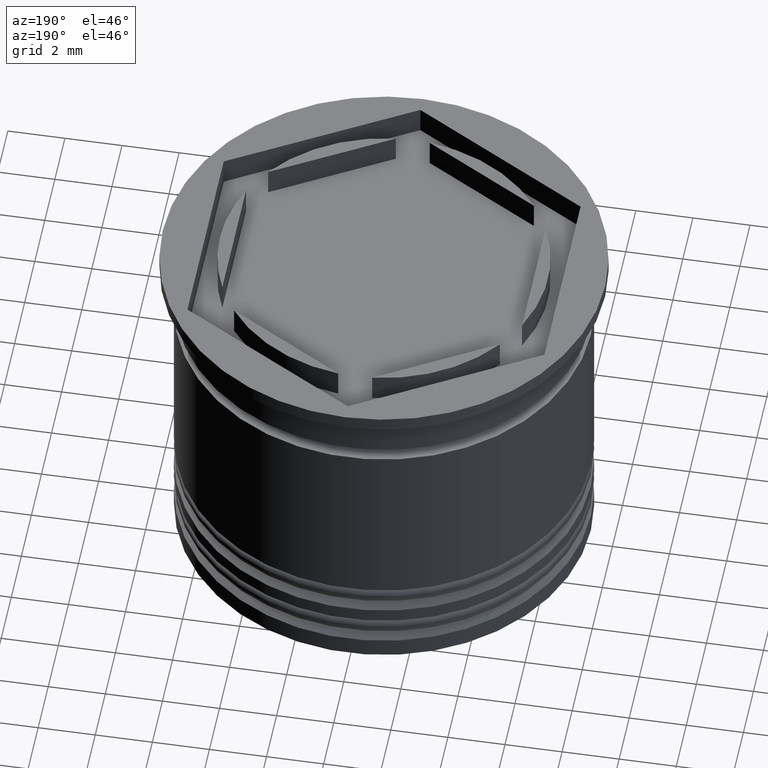
[diagram: clean part render]
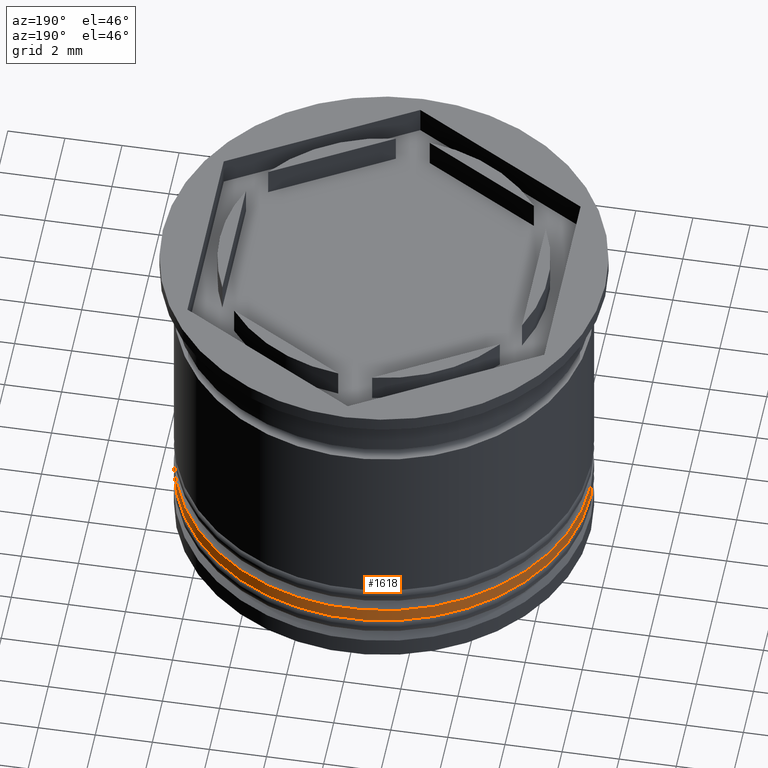
[diagram: same view with one face highlighted and labeled with its STEP entity id]
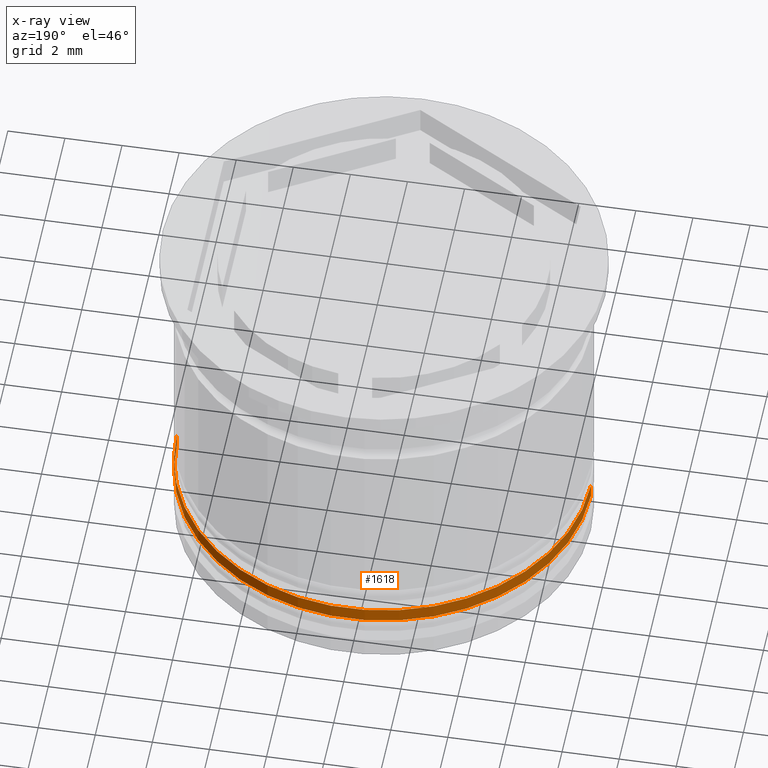
[diagram: x-ray of the same camera — body ghosted, the highlighted face saturated]
A machine part, auxiliary view. The second image highlights one B-rep face of the part: STEP entity #1618.
The next image is the same camera in x-ray: the body ghosted, the highlighted face saturated — about 0% of this face is hidden behind the body in this view.
In plain terms, the highlighted cylindrical surface (partial cylindrical patch) has radius 7.25 mm, axis along (-0, -0, 1).
Its self-contained STEP definition (entity closure, byte-faithful):
#10 = EDGE_CURVE ( 'NONE', #505, #525, #1864, .T. ) ;
#23 = CARTESIAN_POINT ( 'NONE',  ( -7.249999999999999112, 8.878689293818310074E-16, 0.000000000000000000 ) ) ;
#50 = CARTESIAN_POINT ( 'NONE',  ( -7.250000000000000888, 8.878689293818312046E-16, -10.49999999999999822 ) ) ;
#181 = AXIS2_PLACEMENT_3D ( 'NONE', #1090, #1072, #1870 ) ;
#193 = CARTESIAN_POINT ( 'NONE',  ( 0.000000000000000000, 0.000000000000000000, -10.49999999999999822 ) ) ;
#252 = VERTEX_POINT ( 'NONE', #1675 ) ;
#339 = CIRCLE ( 'NONE', #1504, 7.249999999999999112 ) ;
#493 = DIRECTION ( 'NONE',  ( -0.000000000000000000, -0.000000000000000000, 1.000000000000000000 ) ) ;
#505 = VERTEX_POINT ( 'NONE', #50 ) ;
#511 = EDGE_CURVE ( 'NONE', #252, #1403, #1081, .T. ) ;
#524 = CIRCLE ( 'NONE', #772, 7.250000000000000000 ) ;
#525 = VERTEX_POINT ( 'NONE', #1280 ) ;
#620 = CARTESIAN_POINT ( 'NONE',  ( 0.000000000000000000, 0.000000000000000000, -10.00000000000000355 ) ) ;
#621 = VECTOR ( 'NONE', #633, 1000.000000000000000 ) ;
#633 = DIRECTION ( 'NONE',  ( -0.000000000000000000, -0.000000000000000000, 1.000000000000000000 ) ) ;
#672 = ORIENTED_EDGE ( 'NONE', *, *, #10, .T. ) ;
#755 = VECTOR ( 'NONE', #1586, 1000.000000000000000 ) ;
#772 = AXIS2_PLACEMENT_3D ( 'NONE', #193, #493, #1114 ) ;
#839 = EDGE_CURVE ( 'NONE', #252, #505, #524, .T. ) ;
#1072 = DIRECTION ( 'NONE',  ( -0.000000000000000000, -0.000000000000000000, 1.000000000000000000 ) ) ;
#1081 = LINE ( 'NONE', #1126, #755 ) ;
#1090 = CARTESIAN_POINT ( 'NONE',  ( 0.000000000000000000, 0.000000000000000000, 0.000000000000000000 ) ) ;
#1114 = DIRECTION ( 'NONE',  ( 1.000000000000000000, 0.000000000000000000, 0.000000000000000000 ) ) ;
#1126 = CARTESIAN_POINT ( 'NONE',  ( 7.249999999999999112, 0.000000000000000000, 0.000000000000000000 ) ) ;
#1158 = ORIENTED_EDGE ( 'NONE', *, *, #1230, .T. ) ;
#1164 = CARTESIAN_POINT ( 'NONE',  ( 7.249999999999999112, 0.000000000000000000, -10.00000000000000355 ) ) ;
#1230 = EDGE_CURVE ( 'NONE', #525, #1403, #339, .T. ) ;
#1280 = CARTESIAN_POINT ( 'NONE',  ( -7.249999999999999112, 8.878689293818310074E-16, -10.00000000000000355 ) ) ;
#1291 = ORIENTED_EDGE ( 'NONE', *, *, #511, .F. ) ;
#1375 = DIRECTION ( 'NONE',  ( 1.000000000000000000, 0.000000000000000000, 0.000000000000000000 ) ) ;
#1403 = VERTEX_POINT ( 'NONE', #1164 ) ;
#1486 = ORIENTED_EDGE ( 'NONE', *, *, #839, .T. ) ;
#1504 = AXIS2_PLACEMENT_3D ( 'NONE', #620, #1697, #1375 ) ;
#1561 = FACE_OUTER_BOUND ( 'NONE', #1718, .T. ) ;
#1586 = DIRECTION ( 'NONE',  ( -0.000000000000000000, -0.000000000000000000, 1.000000000000000000 ) ) ;
#1618 = ADVANCED_FACE ( 'NONE', ( #1561 ), #1710, .T. ) ;
#1675 = CARTESIAN_POINT ( 'NONE',  ( 7.250000000000000000, 0.000000000000000000, -10.49999999999999822 ) ) ;
#1697 = DIRECTION ( 'NONE',  ( 0.000000000000000000, 0.000000000000000000, -1.000000000000000000 ) ) ;
#1710 = CYLINDRICAL_SURFACE ( 'NONE', #181, 7.249999999999999112 ) ;
#1718 = EDGE_LOOP ( 'NONE', ( #1486, #672, #1158, #1291 ) ) ;
#1864 = LINE ( 'NONE', #23, #621 ) ;
#1870 = DIRECTION ( 'NONE',  ( 1.000000000000000000, 0.000000000000000000, 0.000000000000000000 ) ) ;